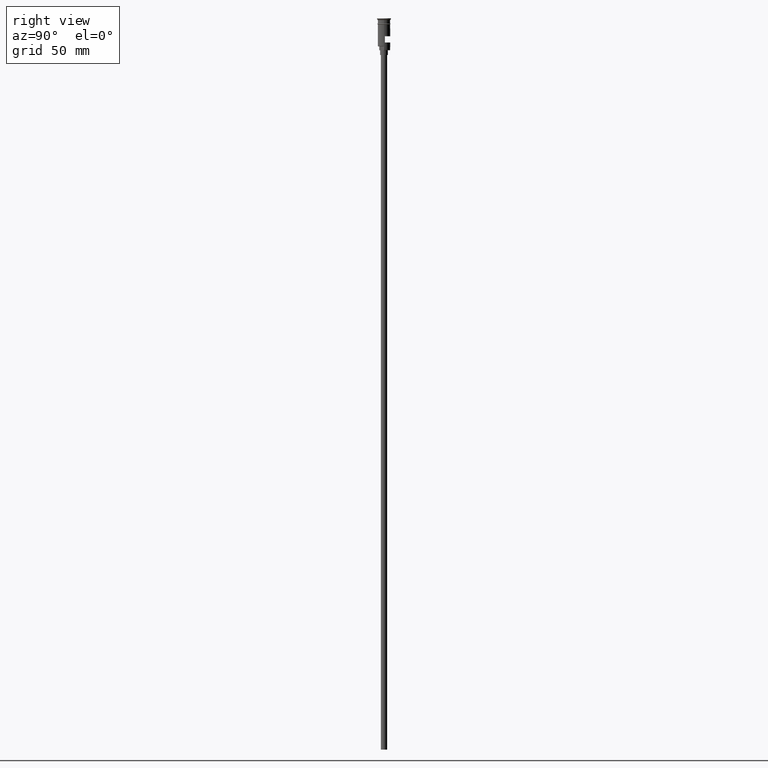
[diagram: clean part render]
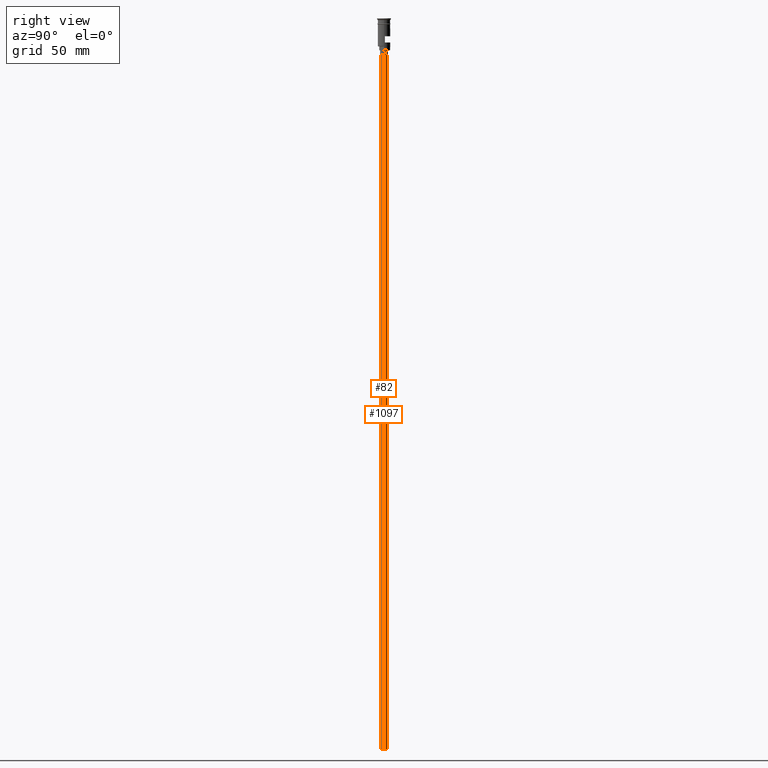
[diagram: same view with one multi-face feature highlighted, each face labeled with its STEP entity id]
A machine part, right view. The highlighted faces form ONE feature: a constant-radius fillet chain: 2 tangent blend faces with common blend radius 2 mm. The faces share edges in the B-rep.
Their STEP definitions:
[1] entity #82 (Cylinder):
#52 = ORIENTED_EDGE ( 'NONE', *, *, #339, .T. ) ;
#65 = EDGE_CURVE ( 'NONE', #1061, #566, #1153, .T. ) ;
#82 = ADVANCED_FACE ( 'NONE', ( #491 ), #441, .T. ) ;
#96 = CARTESIAN_POINT ( 'NONE',  ( -2.000000000000000000, 2.449293598294706414E-16, -23.49999999999999645 ) ) ;
#130 = DIRECTION ( 'NONE',  ( -1.000000000000000000, 0.000000000000000000, 0.000000000000000000 ) ) ;
#141 = CARTESIAN_POINT ( 'NONE',  ( 2.000000000000000000, 0.000000000000000000, -23.49999999999999645 ) ) ;
#145 = AXIS2_PLACEMENT_3D ( 'NONE', #1452, #1127, #130 ) ;
#212 = LINE ( 'NONE', #926, #1446 ) ;
#253 = AXIS2_PLACEMENT_3D ( 'NONE', #1092, #1591, #1074 ) ;
#322 = VECTOR ( 'NONE', #1478, 1000.000000000000000 ) ;
#339 = EDGE_CURVE ( 'NONE', #1201, #1297, #846, .T. ) ;
#343 = CARTESIAN_POINT ( 'NONE',  ( 0.000000000000000000, 0.000000000000000000, -470.5000000000000568 ) ) ;
#361 = EDGE_CURVE ( 'NONE', #566, #1297, #212, .T. ) ;
#395 = CARTESIAN_POINT ( 'NONE',  ( 2.000000000000000000, 0.000000000000000000, -470.5000000000000568 ) ) ;
#441 = CYLINDRICAL_SURFACE ( 'NONE', #683, 2.000000000000000000 ) ;
#443 = ORIENTED_EDGE ( 'NONE', *, *, #1145, .T. ) ;
#469 = CARTESIAN_POINT ( 'NONE',  ( -2.000000000000000000, 2.449293598294706414E-16, -470.5000000000000568 ) ) ;
#491 = FACE_OUTER_BOUND ( 'NONE', #1099, .T. ) ;
#561 = ORIENTED_EDGE ( 'NONE', *, *, #361, .F. ) ;
#566 = VERTEX_POINT ( 'NONE', #395 ) ;
#632 = ORIENTED_EDGE ( 'NONE', *, *, #65, .F. ) ;
#683 = AXIS2_PLACEMENT_3D ( 'NONE', #343, #1593, #866 ) ;
#824 = DIRECTION ( 'NONE',  ( -0.000000000000000000, -0.000000000000000000, 1.000000000000000000 ) ) ;
#846 = CIRCLE ( 'NONE', #253, 2.000000000000000000 ) ;
#866 = DIRECTION ( 'NONE',  ( 1.000000000000000000, 0.000000000000000000, 0.000000000000000000 ) ) ;
#926 = CARTESIAN_POINT ( 'NONE',  ( 2.000000000000000000, 0.000000000000000000, -470.5000000000000568 ) ) ;
#1061 = VERTEX_POINT ( 'NONE', #1553 ) ;
#1074 = DIRECTION ( 'NONE',  ( -1.000000000000000000, 0.000000000000000000, 0.000000000000000000 ) ) ;
#1092 = CARTESIAN_POINT ( 'NONE',  ( 0.000000000000000000, 0.000000000000000000, -23.49999999999999645 ) ) ;
#1099 = EDGE_LOOP ( 'NONE', ( #632, #443, #52, #561 ) ) ;
#1127 = DIRECTION ( 'NONE',  ( 0.000000000000000000, 0.000000000000000000, -1.000000000000000000 ) ) ;
#1145 = EDGE_CURVE ( 'NONE', #1061, #1201, #1578, .T. ) ;
#1153 = CIRCLE ( 'NONE', #145, 2.000000000000000000 ) ;
#1201 = VERTEX_POINT ( 'NONE', #96 ) ;
#1297 = VERTEX_POINT ( 'NONE', #141 ) ;
#1446 = VECTOR ( 'NONE', #824, 1000.000000000000000 ) ;
#1452 = CARTESIAN_POINT ( 'NONE',  ( 0.000000000000000000, 0.000000000000000000, -470.5000000000000568 ) ) ;
#1478 = DIRECTION ( 'NONE',  ( -0.000000000000000000, -0.000000000000000000, 1.000000000000000000 ) ) ;
#1553 = CARTESIAN_POINT ( 'NONE',  ( -2.000000000000000000, 2.449293598294706414E-16, -470.5000000000000568 ) ) ;
#1578 = LINE ( 'NONE', #469, #322 ) ;
#1591 = DIRECTION ( 'NONE',  ( 0.000000000000000000, 0.000000000000000000, -1.000000000000000000 ) ) ;
#1593 = DIRECTION ( 'NONE',  ( -0.000000000000000000, -0.000000000000000000, 1.000000000000000000 ) ) ;
[2] entity #1097 (Cylinder):
#33 = DIRECTION ( 'NONE',  ( 0.000000000000000000, 0.000000000000000000, -1.000000000000000000 ) ) ;
#72 = CIRCLE ( 'NONE', #580, 2.000000000000000000 ) ;
#96 = CARTESIAN_POINT ( 'NONE',  ( -2.000000000000000000, 2.449293598294706414E-16, -23.49999999999999645 ) ) ;
#141 = CARTESIAN_POINT ( 'NONE',  ( 2.000000000000000000, 0.000000000000000000, -23.49999999999999645 ) ) ;
#184 = DIRECTION ( 'NONE',  ( -0.000000000000000000, -0.000000000000000000, 1.000000000000000000 ) ) ;
#196 = CARTESIAN_POINT ( 'NONE',  ( 0.000000000000000000, 0.000000000000000000, -23.49999999999999645 ) ) ;
#212 = LINE ( 'NONE', #926, #1446 ) ;
#315 = CARTESIAN_POINT ( 'NONE',  ( 0.000000000000000000, 0.000000000000000000, -470.5000000000000568 ) ) ;
#322 = VECTOR ( 'NONE', #1478, 1000.000000000000000 ) ;
#353 = ORIENTED_EDGE ( 'NONE', *, *, #361, .T. ) ;
#361 = EDGE_CURVE ( 'NONE', #566, #1297, #212, .T. ) ;
#395 = CARTESIAN_POINT ( 'NONE',  ( 2.000000000000000000, 0.000000000000000000, -470.5000000000000568 ) ) ;
#437 = DIRECTION ( 'NONE',  ( 1.000000000000000000, 0.000000000000000000, 0.000000000000000000 ) ) ;
#469 = CARTESIAN_POINT ( 'NONE',  ( -2.000000000000000000, 2.449293598294706414E-16, -470.5000000000000568 ) ) ;
#500 = ORIENTED_EDGE ( 'NONE', *, *, #1471, .T. ) ;
#533 = DIRECTION ( 'NONE',  ( 0.000000000000000000, 0.000000000000000000, -1.000000000000000000 ) ) ;
#566 = VERTEX_POINT ( 'NONE', #395 ) ;
#580 = AXIS2_PLACEMENT_3D ( 'NONE', #982, #33, #1487 ) ;
#682 = DIRECTION ( 'NONE',  ( -1.000000000000000000, 0.000000000000000000, 0.000000000000000000 ) ) ;
#695 = AXIS2_PLACEMENT_3D ( 'NONE', #196, #533, #682 ) ;
#787 = EDGE_LOOP ( 'NONE', ( #1139, #1602, #353, #500 ) ) ;
#800 = CYLINDRICAL_SURFACE ( 'NONE', #1152, 2.000000000000000000 ) ;
#824 = DIRECTION ( 'NONE',  ( -0.000000000000000000, -0.000000000000000000, 1.000000000000000000 ) ) ;
#831 = CIRCLE ( 'NONE', #695, 2.000000000000000000 ) ;
#926 = CARTESIAN_POINT ( 'NONE',  ( 2.000000000000000000, 0.000000000000000000, -470.5000000000000568 ) ) ;
#982 = CARTESIAN_POINT ( 'NONE',  ( 0.000000000000000000, 0.000000000000000000, -470.5000000000000568 ) ) ;
#1061 = VERTEX_POINT ( 'NONE', #1553 ) ;
#1097 = ADVANCED_FACE ( 'NONE', ( #1560 ), #800, .T. ) ;
#1139 = ORIENTED_EDGE ( 'NONE', *, *, #1145, .F. ) ;
#1145 = EDGE_CURVE ( 'NONE', #1061, #1201, #1578, .T. ) ;
#1152 = AXIS2_PLACEMENT_3D ( 'NONE', #315, #184, #437 ) ;
#1201 = VERTEX_POINT ( 'NONE', #96 ) ;
#1271 = EDGE_CURVE ( 'NONE', #566, #1061, #72, .T. ) ;
#1297 = VERTEX_POINT ( 'NONE', #141 ) ;
#1446 = VECTOR ( 'NONE', #824, 1000.000000000000000 ) ;
#1471 = EDGE_CURVE ( 'NONE', #1297, #1201, #831, .T. ) ;
#1478 = DIRECTION ( 'NONE',  ( -0.000000000000000000, -0.000000000000000000, 1.000000000000000000 ) ) ;
#1487 = DIRECTION ( 'NONE',  ( -1.000000000000000000, 0.000000000000000000, 0.000000000000000000 ) ) ;
#1553 = CARTESIAN_POINT ( 'NONE',  ( -2.000000000000000000, 2.449293598294706414E-16, -470.5000000000000568 ) ) ;
#1560 = FACE_OUTER_BOUND ( 'NONE', #787, .T. ) ;
#1578 = LINE ( 'NONE', #469, #322 ) ;
#1602 = ORIENTED_EDGE ( 'NONE', *, *, #1271, .F. ) ;